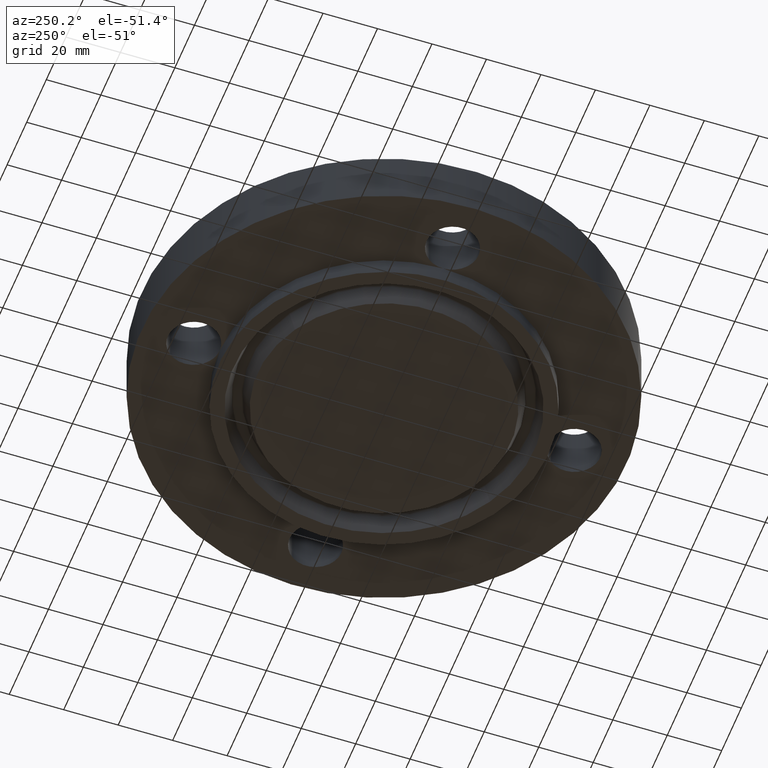
[diagram: clean part render]
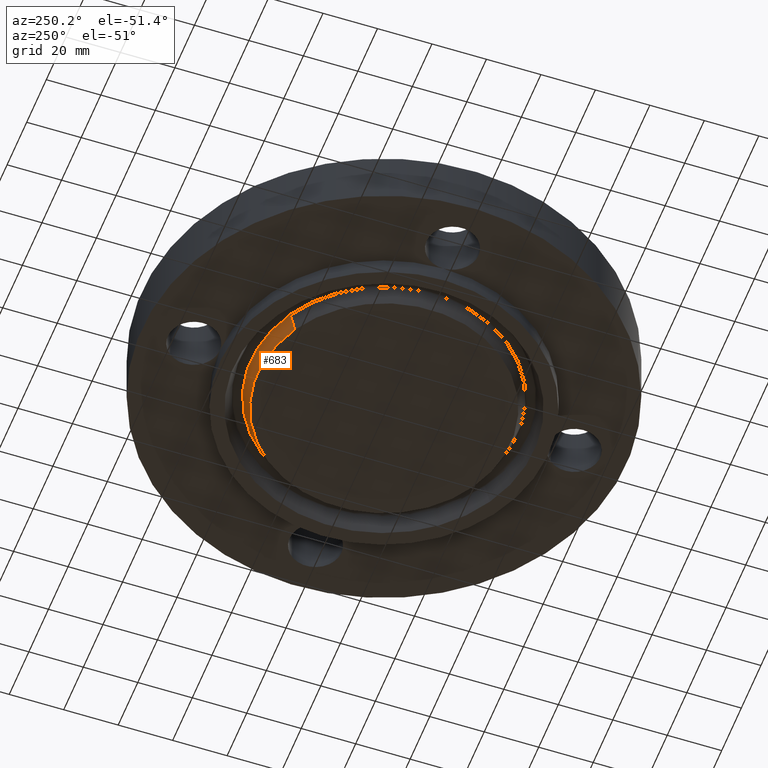
[diagram: same view with one face highlighted and labeled with its STEP entity id]
A machine part, auxiliary view. The second image highlights one B-rep face of the part: STEP entity #683.
In plain terms, the highlighted conical surface has half-angle 23 deg.
Its self-contained STEP definition (entity closure, byte-faithful):
#42=AXIS2_PLACEMENT_3D('Circle Axis2P3D',#40,#41,$) ;
#633=AXIS2_PLACEMENT_3D('Circle Axis2P3D',#631,#632,$) ;
#665=AXIS2_PLACEMENT_3D('Cone Axis2P3D',#662,#663,#664) ;
#40=CARTESIAN_POINT('Axis2P3D Location',(0.,-6.99353086378E-017,-0.250000000001)) ;
#44=CARTESIAN_POINT('Vertex',(-0.876449812764,1.60433062096,-0.250000000001)) ;
#46=CARTESIAN_POINT('Vertex',(0.876449812764,-1.60433062096,-0.250000000001)) ;
#628=CARTESIAN_POINT('Vertex',(0.923451182939,-1.69036605197,-0.0190396522348)) ;
#631=CARTESIAN_POINT('Axis2P3D Location',(0.,0.,-0.0190396522348)) ;
#635=CARTESIAN_POINT('Vertex',(-0.923451182939,1.69036605197,-0.0190396522348)) ;
#662=CARTESIAN_POINT('Axis2P3D Location',(0.,0.,-0.310000000001)) ;
#667=CARTESIAN_POINT('Line Origine',(-0.899950497852,1.64734833647,-0.134519826118)) ;
#672=CARTESIAN_POINT('Line Origine',(0.899950497852,-1.64734833647,-0.134519826118)) ;
#41=DIRECTION('Axis2P3D Direction',(0.,0.,-0.0393700787402)) ;
#632=DIRECTION('Axis2P3D Direction',(0.,0.,0.0393700787402)) ;
#663=DIRECTION('Axis2P3D Direction',(0.,0.,0.0393700787402)) ;
#664=DIRECTION('Axis2P3D XDirection',(-0.0188750212049,0.0345504945626,0.)) ;
#668=DIRECTION('Vector Direction',(-0.00737505833565,0.0134999537303,0.0362403485611)) ;
#673=DIRECTION('Vector Direction',(0.00737505833565,-0.0134999537303,0.0362403485611)) ;
#669=VECTOR('Line Direction',#668,0.0393700787402) ;
#674=VECTOR('Line Direction',#673,0.0393700787402) ;
#678=ORIENTED_EDGE('',*,*,#671,.F.) ;
#679=ORIENTED_EDGE('',*,*,#637,.F.) ;
#680=ORIENTED_EDGE('',*,*,#676,.T.) ;
#681=ORIENTED_EDGE('',*,*,#48,.F.) ;
#683=ADVANCED_FACE('PartBody',(#682),#666,.T.) ;
#43=CIRCLE('generated circle',#42,1.82812500001) ;
#634=CIRCLE('generated circle',#633,1.92616185118) ;
#666=CONICAL_SURFACE('Cone',#665,1.80265651103,0.401425727959) ;
#48=EDGE_CURVE('',#45,#47,#43,.T.) ;
#637=EDGE_CURVE('',#629,#636,#634,.T.) ;
#671=EDGE_CURVE('',#636,#45,#670,.F.) ;
#676=EDGE_CURVE('',#629,#47,#675,.F.) ;
#677=EDGE_LOOP('',(#678,#679,#680,#681)) ;
#682=FACE_OUTER_BOUND('',#677,.T.) ;
#670=LINE('Line',#667,#669) ;
#675=LINE('Line',#672,#674) ;
#45=VERTEX_POINT('',#44) ;
#47=VERTEX_POINT('',#46) ;
#629=VERTEX_POINT('',#628) ;
#636=VERTEX_POINT('',#635) ;